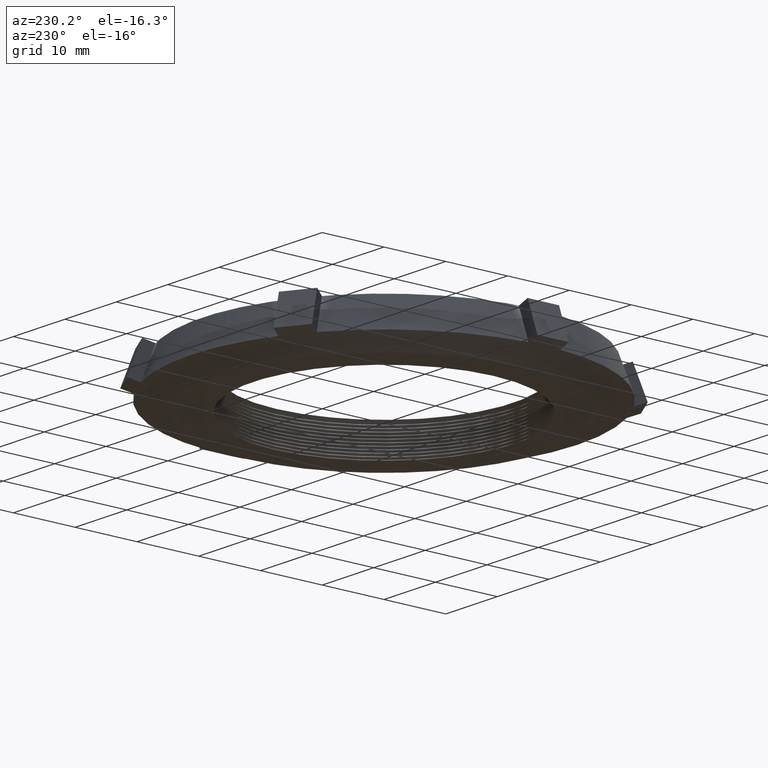
[diagram: clean part render]
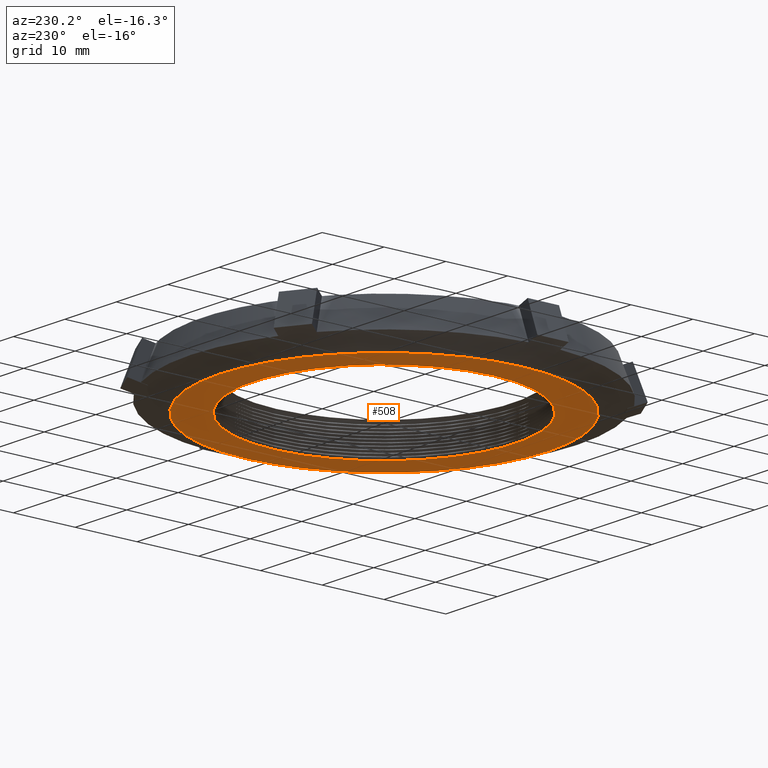
[diagram: same view with one face highlighted and labeled with its STEP entity id]
A machine part, auxiliary view. The second image highlights one B-rep face of the part: STEP entity #508.
In plain terms, the highlighted planar face has unit normal (0, 0, 1).
Its self-contained STEP definition (entity closure, byte-faithful):
#126 = EDGE_CURVE ( 'NONE', #127, #128, #1312, .T. ) ;
#127 = VERTEX_POINT ( 'NONE', #1361 ) ;
#128 = VERTEX_POINT ( 'NONE', #1349 ) ;
#267 = VERTEX_POINT ( 'NONE', #1603 ) ;
#312 = EDGE_CURVE ( 'NONE', #313, #267, #1619, .T. ) ;
#313 = VERTEX_POINT ( 'NONE', #1728 ) ;
#319 = EDGE_CURVE ( 'NONE', #267, #313, #1726, .T. ) ;
#493 = EDGE_LOOP ( 'NONE', ( #506, #499 ) ) ;
#496 = ORIENTED_EDGE ( 'NONE', *, *, #497, .T. ) ;
#497 = EDGE_CURVE ( 'NONE', #128, #127, #2004, .T. ) ;
#498 = ORIENTED_EDGE ( 'NONE', *, *, #126, .T. ) ;
#499 = ORIENTED_EDGE ( 'NONE', *, *, #312, .T. ) ;
#506 = ORIENTED_EDGE ( 'NONE', *, *, #319, .T. ) ;
#507 = EDGE_LOOP ( 'NONE', ( #496, #498 ) ) ;
#508 = ADVANCED_FACE ( 'NONE', ( #1894, #1893 ), #1892, .F. ) ;
#1312 = CIRCLE ( 'NONE', #1343, 0.8375901161933239100 ) ;
#1342 = CARTESIAN_POINT ( 'NONE',  ( 0.0000000000000000000, 0.0000000000000000000, -0.1000000000000000100 ) ) ;
#1343 = AXIS2_PLACEMENT_3D ( 'NONE', #1342, #1363, #1362 ) ;
#1349 = CARTESIAN_POINT ( 'NONE',  ( 0.8375901161933239100, 0.0000000000000000000, -0.1000000000000000100 ) ) ;
#1361 = CARTESIAN_POINT ( 'NONE',  ( -0.8375901161933239100, 1.033316789469094300E-016, -0.1000000000000000100 ) ) ;
#1362 = DIRECTION ( 'NONE',  ( 1.000000000000000000, 0.0000000000000000000, 0.0000000000000000000 ) ) ;
#1363 = DIRECTION ( 'NONE',  ( 0.0000000000000000000, 0.0000000000000000000, 1.000000000000000000 ) ) ;
#1603 = CARTESIAN_POINT ( 'NONE',  ( 1.050000000000000000, 0.0000000000000000000, -0.1000000000000000200 ) ) ;
#1615 = DIRECTION ( 'NONE',  ( -1.000000000000000000, 0.0000000000000000000, 0.0000000000000000000 ) ) ;
#1616 = DIRECTION ( 'NONE',  ( -0.0000000000000000000, -0.0000000000000000000, -1.000000000000000000 ) ) ;
#1617 = CARTESIAN_POINT ( 'NONE',  ( 0.0000000000000000000, 0.0000000000000000000, -0.1000000000000000200 ) ) ;
#1618 = AXIS2_PLACEMENT_3D ( 'NONE', #1617, #1616, #1615 ) ;
#1619 = CIRCLE ( 'NONE', #1618, 1.050000000000000000 ) ;
#1722 = DIRECTION ( 'NONE',  ( -1.000000000000000000, 0.0000000000000000000, 0.0000000000000000000 ) ) ;
#1723 = DIRECTION ( 'NONE',  ( -0.0000000000000000000, -0.0000000000000000000, -1.000000000000000000 ) ) ;
#1724 = CARTESIAN_POINT ( 'NONE',  ( 0.0000000000000000000, 0.0000000000000000000, -0.1000000000000000200 ) ) ;
#1725 = AXIS2_PLACEMENT_3D ( 'NONE', #1724, #1723, #1722 ) ;
#1726 = CIRCLE ( 'NONE', #1725, 1.050000000000000000 ) ;
#1728 = CARTESIAN_POINT ( 'NONE',  ( -1.050000000000000000, 1.396051243357510400E-016, -0.1000000000000000200 ) ) ;
#1891 = CARTESIAN_POINT ( 'NONE',  ( 0.8200000000000002800, 0.0000000000000000000, -0.1000000000000000100 ) ) ;
#1892 = PLANE ( 'NONE',  #1970 ) ;
#1893 = FACE_OUTER_BOUND ( 'NONE', #493, .T. ) ;
#1894 = FACE_BOUND ( 'NONE', #507, .T. ) ;
#1968 = DIRECTION ( 'NONE',  ( 1.000000000000000000, 0.0000000000000000000, -0.0000000000000000000 ) ) ;
#1969 = DIRECTION ( 'NONE',  ( 0.0000000000000000000, 0.0000000000000000000, 1.000000000000000000 ) ) ;
#1970 = AXIS2_PLACEMENT_3D ( 'NONE', #1891, #1969, #1968 ) ;
#2000 = DIRECTION ( 'NONE',  ( 1.000000000000000000, 0.0000000000000000000, 0.0000000000000000000 ) ) ;
#2001 = DIRECTION ( 'NONE',  ( 0.0000000000000000000, 0.0000000000000000000, 1.000000000000000000 ) ) ;
#2002 = CARTESIAN_POINT ( 'NONE',  ( 0.0000000000000000000, 0.0000000000000000000, -0.1000000000000000100 ) ) ;
#2003 = AXIS2_PLACEMENT_3D ( 'NONE', #2002, #2001, #2000 ) ;
#2004 = CIRCLE ( 'NONE', #2003, 0.8375901161933239100 ) ;